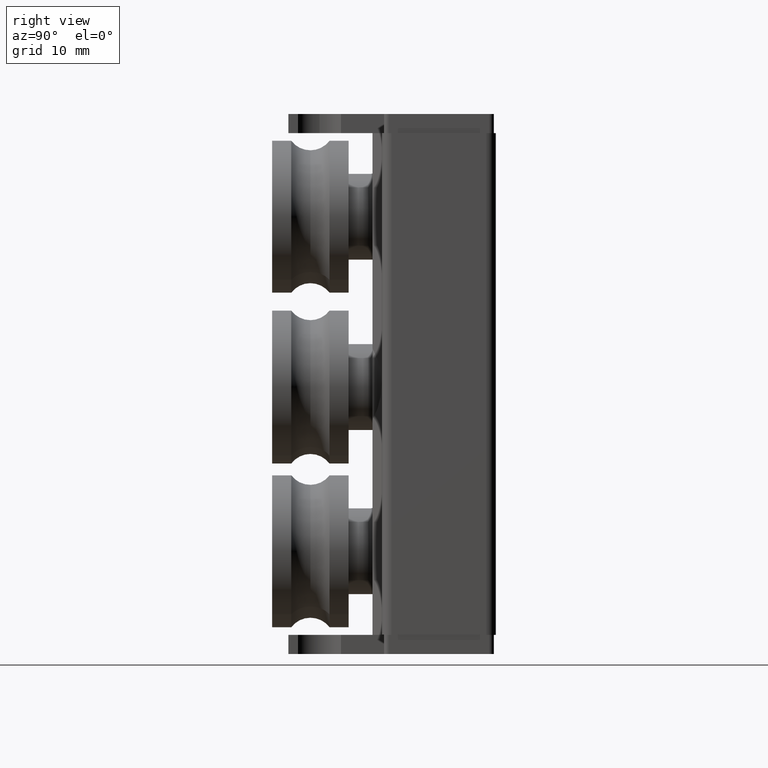
[diagram: clean part render]
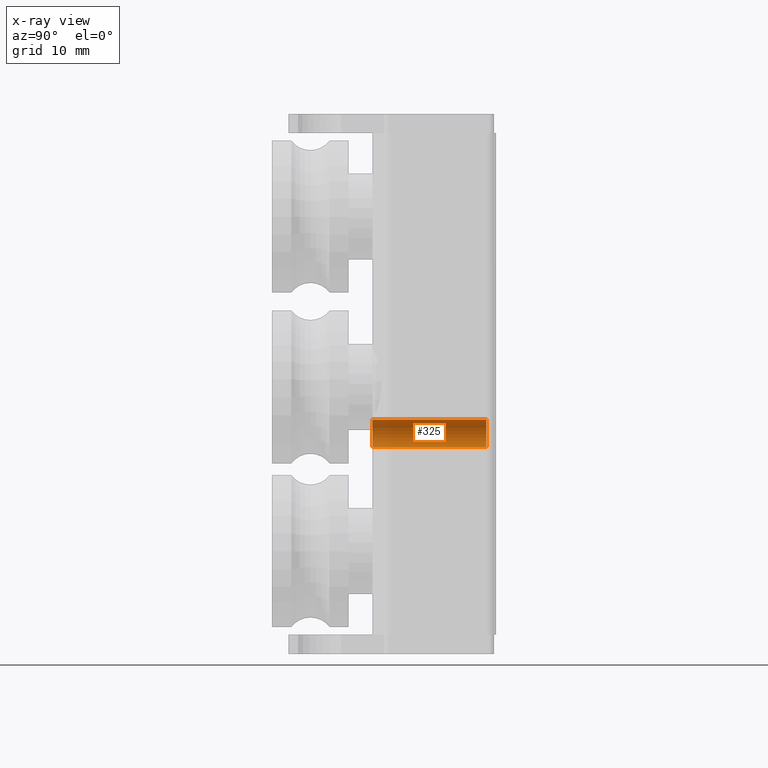
[diagram: x-ray — body ghosted, one internal face saturated and labeled with its STEP entity id]
A machine part, right view, then the same camera in x-ray: the body is ghosted and one INTERNAL B-rep face — a face not visible from any outside direction — is saturated and labeled: STEP entity #325.
In plain terms, the highlighted cylindrical surface (edge-blend (fillet) strip) has radius 1.5 mm, axis along (0, 1, 0).
Its self-contained STEP definition (entity closure, byte-faithful):
#124 = DIRECTION ( 'NONE',  ( -0.000000000000000000, -1.000000000000000000, -0.000000000000000000 ) ) ;
#153 = ORIENTED_EDGE ( 'NONE', *, *, #3000, .F. ) ;
#173 = DIRECTION ( 'NONE',  ( 0.000000000000000000, 1.000000000000000000, -0.000000000000000000 ) ) ;
#325 = ADVANCED_FACE ( 'NONE', ( #4245 ), #3519, .T. ) ;
#332 = DIRECTION ( 'NONE',  ( 0.000000000000000000, 1.000000000000000000, 0.000000000000000000 ) ) ;
#451 = ORIENTED_EDGE ( 'NONE', *, *, #1873, .F. ) ;
#549 = CIRCLE ( 'NONE', #2958, 1.500000000000000444 ) ;
#634 = LINE ( 'NONE', #3231, #1716 ) ;
#705 = VECTOR ( 'NONE', #4495, 1000.000000000000000 ) ;
#815 = CARTESIAN_POINT ( 'NONE',  ( 0.000000000000000000, 11.90000000000000036, 7.000000000000000000 ) ) ;
#976 = AXIS2_PLACEMENT_3D ( 'NONE', #1457, #332, #4001 ) ;
#1069 = EDGE_LOOP ( 'NONE', ( #153, #4326, #1446, #451 ) ) ;
#1145 = CARTESIAN_POINT ( 'NONE',  ( 1.836970198721029934E-16, 0.000000000000000000, 3.999999999999999112 ) ) ;
#1446 = ORIENTED_EDGE ( 'NONE', *, *, #2630, .F. ) ;
#1457 = CARTESIAN_POINT ( 'NONE',  ( 0.000000000000000000, -4.242640687119287435, 5.500000000000000000 ) ) ;
#1713 = CARTESIAN_POINT ( 'NONE',  ( 1.836970198721029934E-16, 11.90000000000000036, 3.999999999999999112 ) ) ;
#1716 = VECTOR ( 'NONE', #2913, 1000.000000000000000 ) ;
#1873 = EDGE_CURVE ( 'NONE', #3251, #3279, #3608, .T. ) ;
#1921 = CARTESIAN_POINT ( 'NONE',  ( 0.000000000000000000, -4.242640687119287435, 7.000000000000000000 ) ) ;
#2015 = CARTESIAN_POINT ( 'NONE',  ( 0.000000000000000000, 11.90000000000000036, 5.500000000000000000 ) ) ;
#2286 = DIRECTION ( 'NONE',  ( 0.000000000000000000, 0.000000000000000000, 1.000000000000000000 ) ) ;
#2630 = EDGE_CURVE ( 'NONE', #3279, #3930, #4590, .T. ) ;
#2889 = VERTEX_POINT ( 'NONE', #1145 ) ;
#2913 = DIRECTION ( 'NONE',  ( 0.000000000000000000, 1.000000000000000000, 0.000000000000000000 ) ) ;
#2958 = AXIS2_PLACEMENT_3D ( 'NONE', #3924, #124, #4513 ) ;
#3000 = EDGE_CURVE ( 'NONE', #2889, #3251, #549, .T. ) ;
#3231 = CARTESIAN_POINT ( 'NONE',  ( 1.836970198721030181E-16, -4.242640687119287435, 3.999999999999999112 ) ) ;
#3251 = VERTEX_POINT ( 'NONE', #4478 ) ;
#3279 = VERTEX_POINT ( 'NONE', #815 ) ;
#3519 = CYLINDRICAL_SURFACE ( 'NONE', #976, 1.500000000000000444 ) ;
#3608 = LINE ( 'NONE', #1921, #705 ) ;
#3820 = AXIS2_PLACEMENT_3D ( 'NONE', #2015, #173, #2286 ) ;
#3924 = CARTESIAN_POINT ( 'NONE',  ( 0.000000000000000000, 0.000000000000000000, 5.500000000000000000 ) ) ;
#3930 = VERTEX_POINT ( 'NONE', #1713 ) ;
#4001 = DIRECTION ( 'NONE',  ( 0.000000000000000000, 0.000000000000000000, 1.000000000000000000 ) ) ;
#4015 = EDGE_CURVE ( 'NONE', #2889, #3930, #634, .T. ) ;
#4245 = FACE_OUTER_BOUND ( 'NONE', #1069, .T. ) ;
#4326 = ORIENTED_EDGE ( 'NONE', *, *, #4015, .T. ) ;
#4478 = CARTESIAN_POINT ( 'NONE',  ( 0.000000000000000000, 0.000000000000000000, 7.000000000000000000 ) ) ;
#4495 = DIRECTION ( 'NONE',  ( 0.000000000000000000, 1.000000000000000000, 0.000000000000000000 ) ) ;
#4513 = DIRECTION ( 'NONE',  ( 0.000000000000000000, 0.000000000000000000, 1.000000000000000000 ) ) ;
#4590 = CIRCLE ( 'NONE', #3820, 1.500000000000000444 ) ;